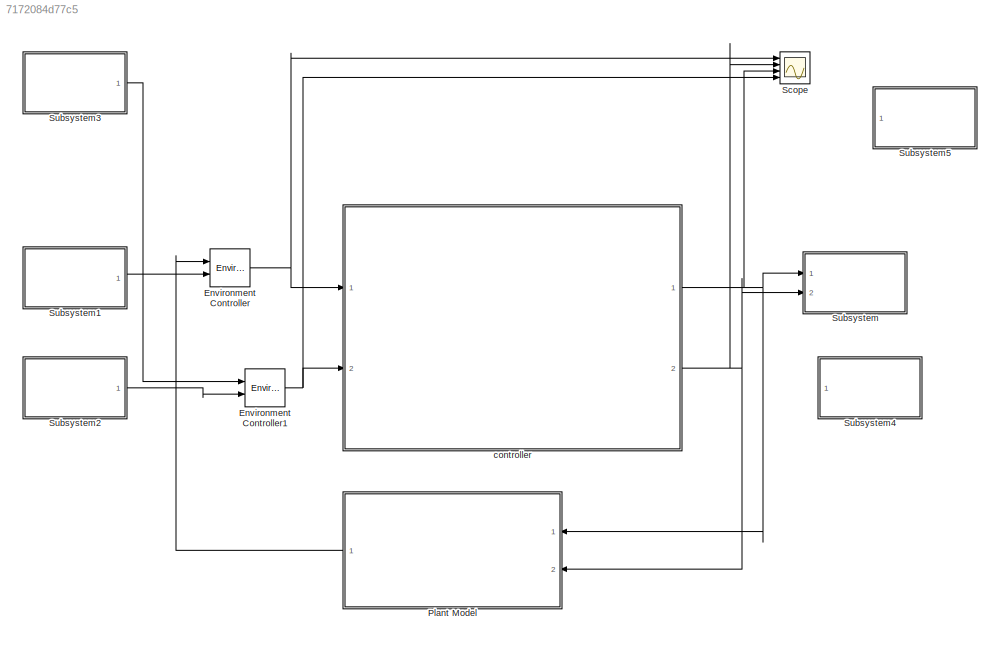
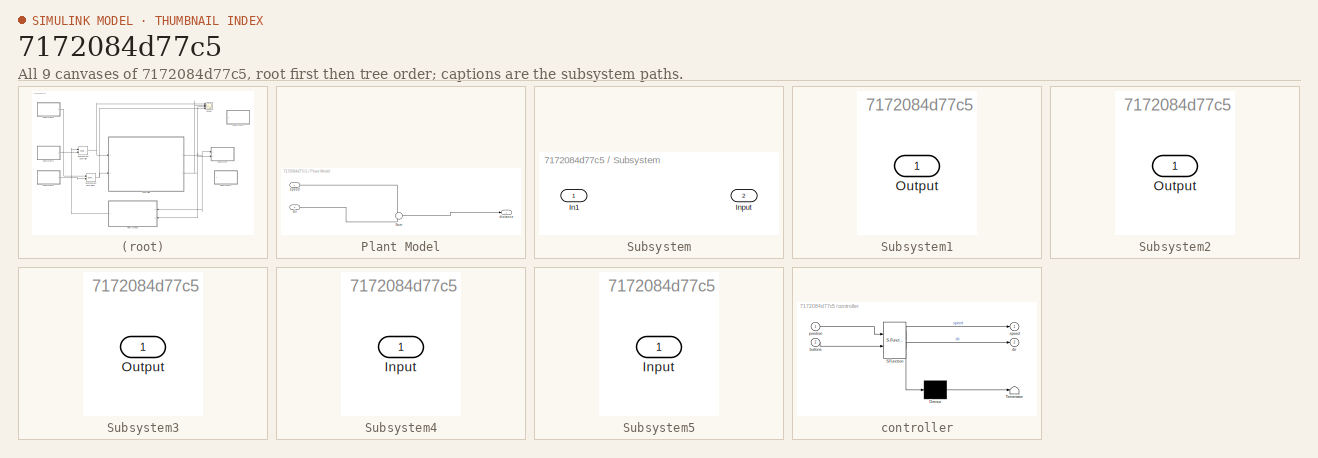
[diagram: thumbnail index - all 9 canvases of the model, root first then tree order]
MODEL slx_7172084d77c5
KIND model
CONFIG AbsTol = auto
CONFIG EnableMultiTasking = on
CONFIG FixedStep = auto
CONFIG MaxStep = auto
CONFIG MinStep = auto
CONFIG RelTol = 1e-3
CONFIG SampleTimeConstraint = Unconstrained
CONFIG Solver = FixedStepAuto
CONFIG SolverName = FixedStepAuto
CONFIG StartTime = 0.0
CONFIG StopTime = 2000.0
BLOCK [Reference] Environment Controller  REF=simulink/Signal
Routing/Environment
Controller
  Ports = [2, 1]
  SourceBlock = simulink/Signal\nRouting/Environment\nController
  SourceProductBaseCode = SL
  SourceType = Environment Controller
BLOCK [Reference] Environment Controller1  REF=simulink/Signal
Routing/Environment
Controller
  Ports = [2, 1]
  SourceBlock = simulink/Signal\nRouting/Environment\nController
  SourceProductBaseCode = SL
  SourceType = Environment Controller
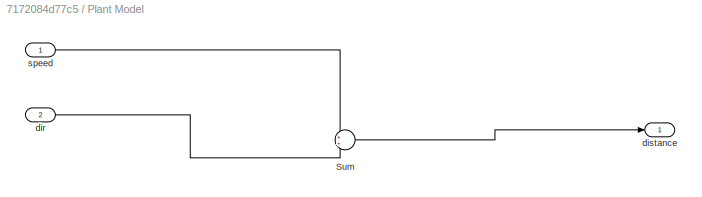
BLOCK [SubSystem] Plant Model
  Ports = [2, 1]
  RequestExecContextInheritance = off
BLOCK [Sum] Plant Model/Sum
  Ports = [2, 1]
BLOCK [Inport] Plant Model/dir
  Port = 2
BLOCK [Outport] Plant Model/distance
  VectorParamsAs1DForOutWhenUnconnected = off
BLOCK [Inport] Plant Model/speed
BLOCK [Scope] Scope
  Floating = off
  NumInputPorts = 4
  Ports = [4]
  ScopeSpecificationString = Simulink.scopes.TimeScopeBlockCfg('CurrentConfiguration', extmgr.ConfigurationSet(extmgr.Configuration('Core','General UI',true),extmgr.Configuration('Core','Source UI',true),extmgr.Configuration('Sources','WiredSimulink',true),extmgr.Configuration('Visuals','Time Domain',true,'SerializedDisplays',{struct('MinYLimReal','-73.25','MaxYLimReal','659.25','YLabelReal','','MinYLimMag','0.00000','MaxYLim...<+3481ch>
BLOCK [SubSystem] Subsystem
  Ports = [2]
  RequestExecContextInheritance = off
BLOCK [Inport] Subsystem/In1
BLOCK [Inport] Subsystem/Input
  Port = 2
BLOCK [SubSystem] Subsystem1
  Ports = [0, 1]
  RequestExecContextInheritance = off
BLOCK [Outport] Subsystem1/Output
  VectorParamsAs1DForOutWhenUnconnected = off
BLOCK [SubSystem] Subsystem2
  Ports = [0, 1]
  RequestExecContextInheritance = off
BLOCK [Outport] Subsystem2/Output
  VectorParamsAs1DForOutWhenUnconnected = off
BLOCK [SubSystem] Subsystem3
  Ports = [0, 1]
  RequestExecContextInheritance = off
BLOCK [Outport] Subsystem3/Output
  VectorParamsAs1DForOutWhenUnconnected = off
BLOCK [SubSystem] Subsystem4
  Ports = [1]
  RequestExecContextInheritance = off
BLOCK [Inport] Subsystem4/Input
BLOCK [SubSystem] Subsystem5
  Ports = [1]
  RequestExecContextInheritance = off
BLOCK [Inport] Subsystem5/Input
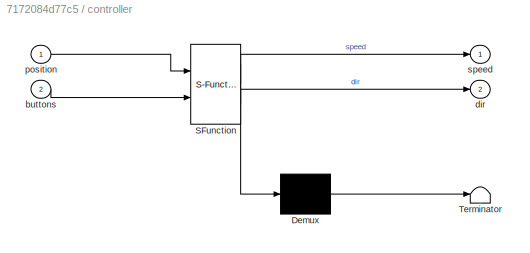
BLOCK [SubSystem] controller
  ErrorFcn = Stateflow.Translate.translate
  PermitHierarchicalResolution = ExplicitOnly
  Ports = [2, 2]
  RequestExecContextInheritance = off
  SFBlockType = Chart
  TreatAsAtomicUnit = on
BLOCK [Demux] controller/ Demux 
  Outputs = 1
  Ports = [1, 1]
BLOCK [S-Function] controller/ SFunction 
  EnableBusSupport = off
  FunctionName = sf_sfun
  PortCounts = [2 3]
  Ports = [2, 3]
  SFcnIsStateOwnerBlock = off
  SFunctionDeploymentMode = off
  Tag = Stateflow S-Function 3
BLOCK [Terminator] controller/ Terminator 
BLOCK [Inport] controller/buttons
  Port = 2
BLOCK [Outport] controller/dir
  Port = 2
  VectorParamsAs1DForOutWhenUnconnected = off
BLOCK [Inport] controller/position
BLOCK [Outport] controller/speed
  VectorParamsAs1DForOutWhenUnconnected = off
NET Environment Controller1:1 -> Scope:4, controller:2
NET Environment Controller:1 -> Scope:1, controller:1
LINE Plant Model/Sum:1 -> Plant Model/distance:1
LINE Plant Model/dir:1 -> Plant Model/Sum:2
LINE Plant Model/speed:1 -> Plant Model/Sum:1
LINE Plant Model:1 -> Environment Controller:1
LINE Subsystem1:1 -> Environment Controller:2
LINE Subsystem2:1 -> Environment Controller1:2
LINE Subsystem3:1 -> Environment Controller1:1
NET controller:1 -> Plant Model:1, Scope:3, Subsystem:1
NET controller:2 -> Plant Model:2, Scope:2, Subsystem:2
note: NET lines group one-source signal fan-out (src -> all destinations, sorted); 1:1 wires keep LINE
CHART controller states=2 transitions=3
  STATE_LABEL 'S1'
  STATE_LABEL 'S2'
CHART  states=0 transitions=0
